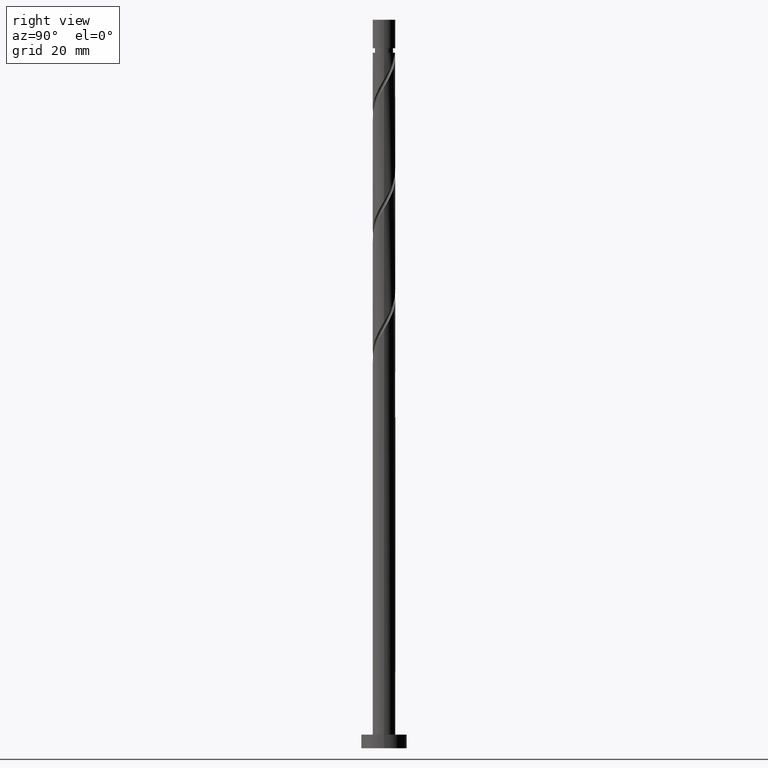
[diagram: clean part render]
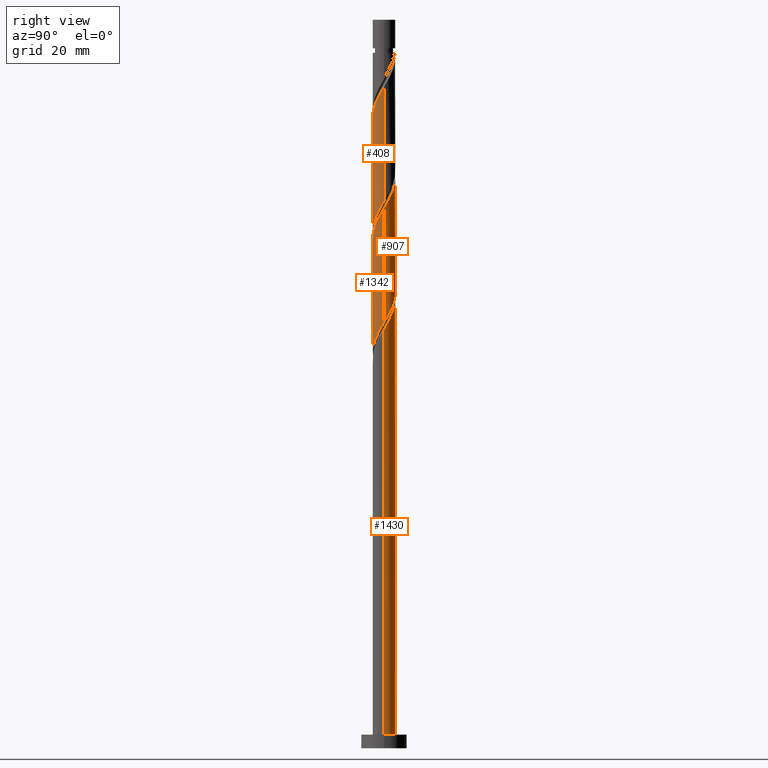
[diagram: same view with one multi-face feature highlighted, each face labeled with its STEP entity id]
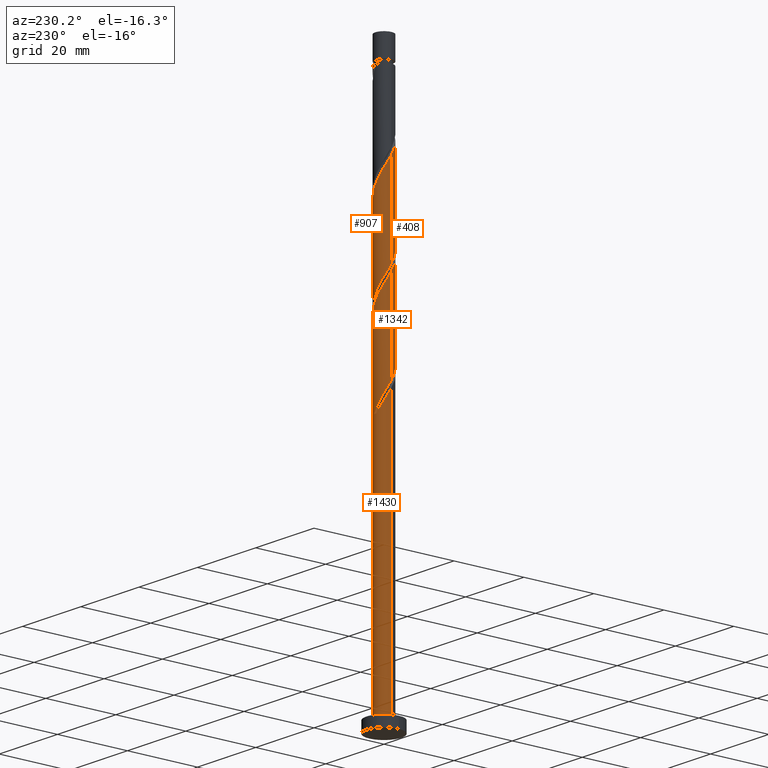
[diagram: same view with one multi-face feature highlighted, each face labeled with its STEP entity id]
A machine part, right view. The highlighted faces form ONE feature: a constant-radius fillet chain: 4 tangent blend faces with common blend radius 2.5 mm. The faces share edges in the B-rep.
A second angle (auxiliary view) of the same feature is appended — it is thin or edge-on in the first view.
Their STEP definitions:
[1] entity #408 (Cylinder):
#28 = CARTESIAN_POINT ( 'NONE',  ( 2.500000000000007105, -0.2863223184627954332, 144.7375180645839521 ) ) ;
#57 = CARTESIAN_POINT ( 'NONE',  ( -2.021932029057393443, -1.470302985738610513, 134.5577809817045534 ) ) ;
#76 = CARTESIAN_POINT ( 'NONE',  ( -0.8497505388409954952, -2.378471201873189500, 112.1335385574621313 ) ) ;
#90 = CARTESIAN_POINT ( 'NONE',  ( -2.500000000000000000, 9.587322070941203532E-15, 106.9223869761569574 ) ) ;
#101 = CARTESIAN_POINT ( 'NONE',  ( 1.525797355502942043, -1.980389464206530725, 116.3759627998864090 ) ) ;
#114 = EDGE_CURVE ( 'NONE', #1462, #1352, #448, .T. ) ;
#124 = FACE_OUTER_BOUND ( 'NONE', #1479, .T. ) ;
#133 = CARTESIAN_POINT ( 'NONE',  ( 0.000000000000000000, 0.000000000000000000, 160.0000000000000000 ) ) ;
#140 = CYLINDRICAL_SURFACE ( 'NONE', #1482, 2.500000000000000000 ) ;
#147 = CARTESIAN_POINT ( 'NONE',  ( 2.177375558832925329, -1.228428132125369387, 143.0426294665530236 ) ) ;
#156 = VECTOR ( 'NONE', #724, 1000.000000000000000 ) ;
#166 = CARTESIAN_POINT ( 'NONE',  ( -2.500000000000003553, 5.055405397781753783E-15, 131.8901446842218661 ) ) ;
#179 = CARTESIAN_POINT ( 'NONE',  ( -1.525797355502945374, -1.980389464206532057, 135.7699021938257999 ) ) ;
#202 = CARTESIAN_POINT ( 'NONE',  ( -1.485422444420509747, -2.042724014156697798, 110.9214173453409131 ) ) ;
#209 = CARTESIAN_POINT ( 'NONE',  ( 0.9060516544719198206, -2.330036566114079832, 115.1638415877651767 ) ) ;
#256 = DIRECTION ( 'NONE',  ( -1.000000000000000000, 0.000000000000000000, 0.000000000000000000 ) ) ;
#271 = CARTESIAN_POINT ( 'NONE',  ( 1.485422444420512189, -2.042724014156701795, 141.2244476483712674 ) ) ;
#290 = CARTESIAN_POINT ( 'NONE',  ( -1.241060336893711646, -2.199766004962788291, 136.3759627998864232 ) ) ;
#305 = ORIENTED_EDGE ( 'NONE', *, *, #114, .F. ) ;
#313 = EDGE_CURVE ( 'NONE', #811, #1352, #1259, .T. ) ;
#346 = CARTESIAN_POINT ( 'NONE',  ( -1.167586491630751899, -2.210597608014944093, 111.5274779514015222 ) ) ;
#352 = CARTESIAN_POINT ( 'NONE',  ( -2.435264748179750693, -0.5652305779706341404, 107.8911143150378962 ) ) ;
#397 = CARTESIAN_POINT ( 'NONE',  ( 1.167586491630753454, -2.210597608014948090, 140.6183870423106441 ) ) ;
#399 = VECTOR ( 'NONE', #1382, 1000.000000000000000 ) ;
#408 = ADVANCED_FACE ( 'NONE', ( #124 ), #140, .T. ) ;
#417 = CARTESIAN_POINT ( 'NONE',  ( 2.435264748179753802, -0.5652305779706356947, 144.2547506786742417 ) ) ;
#448 =( BOUNDED_CURVE ( )  B_SPLINE_CURVE ( 2, ( #732, #1365, #996, #1513, #1001, #478, #1629, #491, #101, #1622, #209, #1387, #1356, #856, #1495, #76, #346, #202, #984, #863, #484, #738, #352, #1247, #90 ),
 .UNSPECIFIED., .F., .T. ) 
 B_SPLINE_CURVE_WITH_KNOTS ( ( 3, 2, 2, 2, 2, 2, 2, 2, 2, 2, 2, 2, 3 ),
 ( 0.5545252162417512176, 0.5568181818181817677, 0.5681818181818182323, 0.5795454545454545858, 0.5909090909090909394, 0.6022727272727272929, 0.6136363636363636465, 0.6250000000000000000, 0.6363636363636363535, 0.6477272727272727071, 0.6590909090909090606, 0.6704545454545454142, 0.6795252162417515507 ),
 .UNSPECIFIED. ) 
 CURVE ( )  GEOMETRIC_REPRESENTATION_ITEM ( )  RATIONAL_B_SPLINE_CURVE ( ( 0.9061101570135599026, 0.9072237824201421219, 0.9090909090909196077, 0.8998376744372220681, 0.9090909090909196077, 0.8998376744372220681, 0.9090909090909196077, 0.8998376744372220681, 0.9090909090909196077, 0.8998376744372220681, 0.9090909090909196077, 0.8998376744372220681, 0.9090909090909196077, 0.8998376744372220681, 0.9090909090909196077, 0.8998376744372220681, 0.9090909090909196077, 0.8998376744372220681, 0.9090909090909196077, 0.8998376744372220681, 0.9090909090909196077, 0.8998376744372220681, 0.9090909090909196077, 0.9017048011079993319, 0.9061101570135603467 ) ) 
 REPRESENTATION_ITEM ( '' )  );
#478 = CARTESIAN_POINT ( 'NONE',  ( 2.233329684002602900, -1.179593048026942315, 118.1941446180682220 ) ) ;
#484 = CARTESIAN_POINT ( 'NONE',  ( -2.177375558832922664, -1.228428132125366723, 109.1032355271591143 ) ) ;
#491 = CARTESIAN_POINT ( 'NONE',  ( 1.810534374112177547, -1.761012923450274714, 116.9820234059470039 ) ) ;
#536 = CARTESIAN_POINT ( 'NONE',  ( -2.354261794510399408, -0.8411013035946942606, 133.3456597695833352 ) ) ;
#575 = CARTESIAN_POINT ( 'NONE',  ( -2.500000000000003553, 5.055405397781753783E-15, 131.8901446842218661 ) ) ;
#623 = CARTESIAN_POINT ( 'NONE',  ( 2.500000000000000444, -3.155889168437744836E-15, 120.2557203094903002 ) ) ;
#631 = DIRECTION ( 'NONE',  ( -0.000000000000000000, -0.000000000000000000, -1.000000000000000000 ) ) ;
#686 = EDGE_CURVE ( 'NONE', #811, #1546, #1012, .T. ) ;
#695 = CARTESIAN_POINT ( 'NONE',  ( -0.9060516544719224852, -2.330036566114084273, 136.9820234059470749 ) ) ;
#724 = DIRECTION ( 'NONE',  ( -0.000000000000000000, -0.000000000000000000, -1.000000000000000000 ) ) ;
#732 = CARTESIAN_POINT ( 'NONE',  ( 2.500000000000000444, -3.155889168437744836E-15, 120.2557203094903002 ) ) ;
#738 = CARTESIAN_POINT ( 'NONE',  ( -2.353996859965338917, -0.9153687888900170488, 108.4971749210985053 ) ) ;
#739 = LINE ( 'NONE', #1651, #399 ) ;
#811 = VERTEX_POINT ( 'NONE', #575 ) ;
#849 = CARTESIAN_POINT ( 'NONE',  ( -2.500000000000000000, 0.000000000000000000, 160.0000000000000000 ) ) ;
#856 = CARTESIAN_POINT ( 'NONE',  ( -0.1452368982656266350, -2.521528798126810411, 113.3456597695833636 ) ) ;
#863 = CARTESIAN_POINT ( 'NONE',  ( -2.000754257700505967, -1.541487475360715065, 109.7092961332197234 ) ) ;
#916 = CARTESIAN_POINT ( 'NONE',  ( -2.233329684002606896, -1.179593048026944091, 133.9517203756439869 ) ) ;
#926 = CARTESIAN_POINT ( 'NONE',  ( 2.500000000000003997, 1.839688946530046523E-15, 145.2234780175552373 ) ) ;
#949 = ORIENTED_EDGE ( 'NONE', *, *, #313, .T. ) ;
#984 = CARTESIAN_POINT ( 'NONE',  ( -1.743088351060508412, -1.792105744758706987, 110.3153567392803467 ) ) ;
#996 = CARTESIAN_POINT ( 'NONE',  ( 2.495863270706175197, -0.1437585960555969600, 120.0123264362500066 ) ) ;
#1001 = CARTESIAN_POINT ( 'NONE',  ( 2.354261794510395411, -0.8411013035946938166, 118.8002052241288027 ) ) ;
#1012 =( BOUNDED_CURVE ( )  B_SPLINE_CURVE ( 2, ( #166, #1553, #1457, #1068, #536, #916, #57, #1330, #179, #290, #695, #1079, #1566, #1575, #1050, #1598, #397, #271, #1340, #1309, #147, #1175, #417, #28, #926 ),
 .UNSPECIFIED., .F., .T. ) 
 B_SPLINE_CURVE_WITH_KNOTS ( ( 3, 2, 2, 2, 2, 2, 2, 2, 2, 2, 2, 2, 3 ),
 ( 0.5545252162417513286, 0.5568181818181818787, 0.5681818181818181213, 0.5795454545454545858, 0.5909090909090908283, 0.6022727272727272929, 0.6136363636363636465, 0.6250000000000000000, 0.6363636363636363535, 0.6477272727272727071, 0.6590909090909091717, 0.6704545454545454142, 0.6795252162417517727 ),
 .UNSPECIFIED. ) 
 CURVE ( )  GEOMETRIC_REPRESENTATION_ITEM ( )  RATIONAL_B_SPLINE_CURVE ( ( 0.9061101570135664529, 0.9072237824201486722, 0.9090909090909261581, 0.8998376744372282854, 0.9090909090909261581, 0.8998376744372282854, 0.9090909090909261581, 0.8998376744372282854, 0.9090909090909261581, 0.8998376744372282854, 0.9090909090909261581, 0.8998376744372282854, 0.9090909090909261581, 0.8998376744372282854, 0.9090909090909261581, 0.8998376744372282854, 0.9090909090909261581, 0.8998376744372282854, 0.9090909090909261581, 0.8998376744372282854, 0.9090909090909261581, 0.8998376744372282854, 0.9090909090909261581, 0.9017048011080055492, 0.9061101570135668970 ) ) 
 REPRESENTATION_ITEM ( '' )  );
#1050 = CARTESIAN_POINT ( 'NONE',  ( 0.4974937185533107042, -2.450000000000004174, 139.4062658301894260 ) ) ;
#1053 = ORIENTED_EDGE ( 'NONE', *, *, #686, .F. ) ;
#1068 = CARTESIAN_POINT ( 'NONE',  ( -2.475193905018193252, -0.5026095591624447634, 132.7395991635227972 ) ) ;
#1079 = CARTESIAN_POINT ( 'NONE',  ( -0.5710429720501328799, -2.460307127265380256, 137.5880840120076414 ) ) ;
#1175 = CARTESIAN_POINT ( 'NONE',  ( 2.353996859965343802, -0.9153687888900189362, 143.6486900726136753 ) ) ;
#1247 = CARTESIAN_POINT ( 'NONE',  ( -2.500000000000001776, -0.2863223184627987083, 107.4083469291282569 ) ) ;
#1259 = LINE ( 'NONE', #849, #156 ) ;
#1309 = CARTESIAN_POINT ( 'NONE',  ( 2.000754257700509076, -1.541487475360719284, 142.4365688604924856 ) ) ;
#1330 = CARTESIAN_POINT ( 'NONE',  ( -1.810534374112179989, -1.761012923450278045, 135.1638415877652051 ) ) ;
#1340 = CARTESIAN_POINT ( 'NONE',  ( 1.743088351060510188, -1.792105744758709873, 141.8305082544318623 ) ) ;
#1352 = VERTEX_POINT ( 'NONE', #1623 ) ;
#1356 = CARTESIAN_POINT ( 'NONE',  ( 0.2129030368922521788, -2.490917962696093113, 113.9517203756439869 ) ) ;
#1365 = CARTESIAN_POINT ( 'NONE',  ( 2.500000000000000444, -0.07193881630955473172, 120.1336223047720893 ) ) ;
#1382 = DIRECTION ( 'NONE',  ( -0.000000000000000000, -0.000000000000000000, -1.000000000000000000 ) ) ;
#1387 = CARTESIAN_POINT ( 'NONE',  ( 0.5710429720501321027, -2.460307127265375371, 114.5577809817045534 ) ) ;
#1408 = CARTESIAN_POINT ( 'NONE',  ( 2.500000000000003997, 1.839688946530046523E-15, 145.2234780175552373 ) ) ;
#1457 = CARTESIAN_POINT ( 'NONE',  ( -2.495863270706177861, -0.1437585960555961828, 132.1335385574621455 ) ) ;
#1462 = VERTEX_POINT ( 'NONE', #623 ) ;
#1474 = ORIENTED_EDGE ( 'NONE', *, *, #1519, .F. ) ;
#1479 = EDGE_LOOP ( 'NONE', ( #1474, #1053, #949, #305 ) ) ;
#1482 = AXIS2_PLACEMENT_3D ( 'NONE', #133, #631, #256 ) ;
#1495 = CARTESIAN_POINT ( 'NONE',  ( -0.4974937185533109263, -2.449999999999999289, 112.7395991635227404 ) ) ;
#1513 = CARTESIAN_POINT ( 'NONE',  ( 2.475193905018187035, -0.5026095591624447634, 119.4062658301894118 ) ) ;
#1519 = EDGE_CURVE ( 'NONE', #1546, #1462, #739, .T. ) ;
#1546 = VERTEX_POINT ( 'NONE', #1408 ) ;
#1553 = CARTESIAN_POINT ( 'NONE',  ( -2.500000000000003109, -0.07193881630955441253, 132.0122426889400629 ) ) ;
#1566 = CARTESIAN_POINT ( 'NONE',  ( -0.2129030368922535665, -2.490917962696097554, 138.1941446180681794 ) ) ;
#1575 = CARTESIAN_POINT ( 'NONE',  ( 0.1452368982656257745, -2.521528798126813964, 138.8002052241288311 ) ) ;
#1598 = CARTESIAN_POINT ( 'NONE',  ( 0.8497505388409959393, -2.378471201873194385, 140.0123264362500493 ) ) ;
#1622 = CARTESIAN_POINT ( 'NONE',  ( 1.241060336893708538, -2.199766004962784738, 115.7699021938257715 ) ) ;
#1623 = CARTESIAN_POINT ( 'NONE',  ( -2.500000000000000000, 9.587322070941203532E-15, 106.9223869761569574 ) ) ;
#1629 = CARTESIAN_POINT ( 'NONE',  ( 2.021932029057389890, -1.470302985738608958, 117.5880840120076130 ) ) ;
#1651 = CARTESIAN_POINT ( 'NONE',  ( 2.500000000000000000, 3.061616997868383141E-16, 160.0000000000000000 ) ) ;
[2] entity #907 (Cylinder):
#5 = DIRECTION ( 'NONE',  ( -1.000000000000000000, 0.000000000000000000, 0.000000000000000000 ) ) ;
#8 = ORIENTED_EDGE ( 'NONE', *, *, #839, .F. ) ;
#70 = CARTESIAN_POINT ( 'NONE',  ( -2.495863270706175197, 0.1437585960555966269, 106.6789931029167064 ) ) ;
#91 = CARTESIAN_POINT ( 'NONE',  ( -2.354261794510395411, 0.8411013035946935945, 105.4668718907954883 ) ) ;
#156 = VECTOR ( 'NONE', #724, 1000.000000000000000 ) ;
#198 = CARTESIAN_POINT ( 'NONE',  ( -2.500000000000003553, 5.055405397781753783E-15, 131.8901446842218661 ) ) ;
#203 = CARTESIAN_POINT ( 'NONE',  ( -0.9060516544719198206, 2.330036566114079832, 101.8305082544318338 ) ) ;
#210 = CARTESIAN_POINT ( 'NONE',  ( -1.525797355502942487, 1.980389464206529837, 103.0426294665530520 ) ) ;
#213 = CARTESIAN_POINT ( 'NONE',  ( 2.495863270706177861, 0.1437585960555959053, 118.8002052241288169 ) ) ;
#220 = CARTESIAN_POINT ( 'NONE',  ( -1.485422444420511967, 2.042724014156701795, 127.8911143150379672 ) ) ;
#225 = CARTESIAN_POINT ( 'NONE',  ( -0.1452368982656254692, 2.521528798126813964, 125.4668718907955309 ) ) ;
#278 = CARTESIAN_POINT ( 'NONE',  ( -2.500000000000000000, 9.587322070941203532E-15, 106.9223869761569574 ) ) ;
#313 = EDGE_CURVE ( 'NONE', #811, #1352, #1259, .T. ) ;
#330 = CARTESIAN_POINT ( 'NONE',  ( -1.743088351060510188, 1.792105744758709873, 128.4971749210985195 ) ) ;
#342 = CARTESIAN_POINT ( 'NONE',  ( 2.000754257700505523, 1.541487475360715953, 96.37596279988638059 ) ) ;
#350 = CARTESIAN_POINT ( 'NONE',  ( 0.9060516544719215970, 2.330036566114083829, 123.6486900726136753 ) ) ;
#363 = CARTESIAN_POINT ( 'NONE',  ( 0.000000000000000000, 0.000000000000000000, 160.0000000000000000 ) ) ;
#404 = CARTESIAN_POINT ( 'NONE',  ( 2.500000000000000000, 3.061616997868383141E-16, 160.0000000000000000 ) ) ;
#466 = CARTESIAN_POINT ( 'NONE',  ( 1.167586491630752343, 2.210597608014944093, 98.19414461806822203 ) ) ;
#468 = CARTESIAN_POINT ( 'NONE',  ( 0.2129030368922538718, 2.490917962696097554, 124.8608112847348934 ) ) ;
#473 = CARTESIAN_POINT ( 'NONE',  ( -2.021932029057389446, 1.470302985738609181, 104.2547506786742559 ) ) ;
#475 = CARTESIAN_POINT ( 'NONE',  ( -0.4974937185533103712, 2.450000000000004174, 126.0729324968560832 ) ) ;
#479 = CARTESIAN_POINT ( 'NONE',  ( -2.475193905018187035, 0.5026095591624444303, 106.0729324968560974 ) ) ;
#482 = CARTESIAN_POINT ( 'NONE',  ( -2.435264748179753802, 0.5652305779706361388, 130.9214173453409273 ) ) ;
#563 = LINE ( 'NONE', #404, #731 ) ;
#575 = CARTESIAN_POINT ( 'NONE',  ( -2.500000000000003553, 5.055405397781753783E-15, 131.8901446842218661 ) ) ;
#587 = CARTESIAN_POINT ( 'NONE',  ( -0.2129030368922528726, 2.490917962696093113, 100.6183870423106299 ) ) ;
#596 = CARTESIAN_POINT ( 'NONE',  ( 2.435264748179749805, 0.5652305779706334743, 94.55778098170459600 ) ) ;
#605 = CARTESIAN_POINT ( 'NONE',  ( 2.500000000000003997, 1.839688946530046523E-15, 118.5568113508885517 ) ) ;
#689 = ORIENTED_EDGE ( 'NONE', *, *, #313, .F. ) ;
#718 = CARTESIAN_POINT ( 'NONE',  ( -0.5710429720501314366, 2.460307127265375371, 101.2244476483711964 ) ) ;
#724 = DIRECTION ( 'NONE',  ( -0.000000000000000000, -0.000000000000000000, -1.000000000000000000 ) ) ;
#728 = CARTESIAN_POINT ( 'NONE',  ( -0.8497505388409964944, 2.378471201873193941, 126.6789931029167064 ) ) ;
#731 = VECTOR ( 'NONE', #935, 1000.000000000000000 ) ;
#735 = CARTESIAN_POINT ( 'NONE',  ( -2.000754257700509076, 1.541487475360719062, 129.1032355271591712 ) ) ;
#770 = FACE_OUTER_BOUND ( 'NONE', #1467, .T. ) ;
#796 = CARTESIAN_POINT ( 'NONE',  ( -2.500000000000000444, 0.07193881630956475148, 106.8002889714387607 ) ) ;
#811 = VERTEX_POINT ( 'NONE', #575 ) ;
#833 = CARTESIAN_POINT ( 'NONE',  ( 0.5710429720501333239, 2.460307127265380256, 124.2547506786742986 ) ) ;
#839 = EDGE_CURVE ( 'NONE', #1582, #811, #1070, .T. ) ;
#842 = CARTESIAN_POINT ( 'NONE',  ( -2.233329684002602900, 1.179593048026942315, 104.8608112847348792 ) ) ;
#844 = CARTESIAN_POINT ( 'NONE',  ( -2.177375558832925773, 1.228428132125368943, 129.7092961332197376 ) ) ;
#849 = CARTESIAN_POINT ( 'NONE',  ( -2.500000000000000000, 0.000000000000000000, 160.0000000000000000 ) ) ;
#857 = CARTESIAN_POINT ( 'NONE',  ( 0.1452368982656260243, 2.521528798126809967, 100.0123264362500066 ) ) ;
#859 = CARTESIAN_POINT ( 'NONE',  ( 2.354261794510399408, 0.8411013035946938166, 120.0123264362500350 ) ) ;
#887 = CYLINDRICAL_SURFACE ( 'NONE', #1380, 2.500000000000000000 ) ;
#904 = DIRECTION ( 'NONE',  ( -0.000000000000000000, -0.000000000000000000, -1.000000000000000000 ) ) ;
#907 = ADVANCED_FACE ( 'NONE', ( #770 ), #887, .T. ) ;
#935 = DIRECTION ( 'NONE',  ( -0.000000000000000000, -0.000000000000000000, -1.000000000000000000 ) ) ;
#972 = CARTESIAN_POINT ( 'NONE',  ( 2.475193905018193252, 0.5026095591624444303, 119.4062658301894686 ) ) ;
#979 = CARTESIAN_POINT ( 'NONE',  ( 2.353996859965339361, 0.9153687888900159386, 95.16384158776513402 ) ) ;
#991 = CARTESIAN_POINT ( 'NONE',  ( 2.177375558832922664, 1.228428132125367167, 95.76990219382578573 ) ) ;
#1070 =( BOUNDED_CURVE ( )  B_SPLINE_CURVE ( 2, ( #605, #1475, #213, #972, #859, #1639, #1091, #1113, #1376, #1384, #350, #833, #468, #225, #475, #728, #1350, #220, #330, #735, #844, #1608, #482, #1361, #198 ),
 .UNSPECIFIED., .F., .T. ) 
 B_SPLINE_CURVE_WITH_KNOTS ( ( 3, 2, 2, 2, 2, 2, 2, 2, 2, 2, 2, 2, 3 ),
 ( 0.4295252162417516062, 0.4318181818181817677, 0.4431818181818182323, 0.4545454545454545858, 0.4659090909090909394, 0.4772727272727272929, 0.4886363636363636465, 0.5000000000000000000, 0.5113636363636363535, 0.5227272727272727071, 0.5340909090909091717, 0.5454545454545454142, 0.5545252162417513286 ),
 .UNSPECIFIED. ) 
 CURVE ( )  GEOMETRIC_REPRESENTATION_ITEM ( )  RATIONAL_B_SPLINE_CURVE ( ( 0.9061101570135667860, 0.9072237824201488943, 0.9090909090909261581, 0.8998376744372282854, 0.9090909090909261581, 0.8998376744372282854, 0.9090909090909261581, 0.8998376744372282854, 0.9090909090909261581, 0.8998376744372282854, 0.9090909090909261581, 0.8998376744372282854, 0.9090909090909261581, 0.8998376744372282854, 0.9090909090909261581, 0.8998376744372282854, 0.9090909090909261581, 0.8998376744372282854, 0.9090909090909261581, 0.8998376744372282854, 0.9090909090909261581, 0.8998376744372282854, 0.9090909090909261581, 0.9017048011080057712, 0.9061101570135664529 ) ) 
 REPRESENTATION_ITEM ( '' )  );
#1091 = CARTESIAN_POINT ( 'NONE',  ( 2.021932029057393887, 1.470302985738609847, 121.2244476483712532 ) ) ;
#1113 = CARTESIAN_POINT ( 'NONE',  ( 1.810534374112180656, 1.761012923450276935, 121.8305082544318338 ) ) ;
#1138 = EDGE_CURVE ( 'NONE', #1582, #1565, #563, .T. ) ;
#1214 = CARTESIAN_POINT ( 'NONE',  ( 0.8497505388409958282, 2.378471201873189500, 98.80020522412880268 ) ) ;
#1223 = CARTESIAN_POINT ( 'NONE',  ( 1.485422444420509969, 2.042724014156697798, 97.58808401200758453 ) ) ;
#1239 = CARTESIAN_POINT ( 'NONE',  ( 1.743088351060507524, 1.792105744758707209, 96.98202340594698967 ) ) ;
#1248 = CARTESIAN_POINT ( 'NONE',  ( -1.810534374112176215, 1.761012923450275158, 103.6486900726136611 ) ) ;
#1259 = LINE ( 'NONE', #849, #156 ) ;
#1262 = EDGE_CURVE ( 'NONE', #1352, #1565, #1616, .T. ) ;
#1337 = ORIENTED_EDGE ( 'NONE', *, *, #1262, .F. ) ;
#1350 = CARTESIAN_POINT ( 'NONE',  ( -1.167586491630753898, 2.210597608014947646, 127.2850537089773013 ) ) ;
#1352 = VERTEX_POINT ( 'NONE', #1623 ) ;
#1361 = CARTESIAN_POINT ( 'NONE',  ( -2.500000000000003997, 0.2863223184628094775, 131.4041847312505809 ) ) ;
#1373 = CARTESIAN_POINT ( 'NONE',  ( 0.4974937185533113704, 2.449999999999999289, 99.40626583018944018 ) ) ;
#1376 = CARTESIAN_POINT ( 'NONE',  ( 1.525797355502944930, 1.980389464206532946, 122.4365688604924571 ) ) ;
#1380 = AXIS2_PLACEMENT_3D ( 'NONE', #363, #904, #5 ) ;
#1384 = CARTESIAN_POINT ( 'NONE',  ( 1.241060336893710536, 2.199766004962788735, 123.0426294665530946 ) ) ;
#1467 = EDGE_LOOP ( 'NONE', ( #8, #1597, #1337, #689 ) ) ;
#1475 = CARTESIAN_POINT ( 'NONE',  ( 2.500000000000002665, 0.07193881630956573681, 118.6789093556067627 ) ) ;
#1490 = CARTESIAN_POINT ( 'NONE',  ( 2.500000000000000444, -3.155889168437744836E-15, 93.58905364282367145 ) ) ;
#1496 = CARTESIAN_POINT ( 'NONE',  ( -1.241060336893708760, 2.199766004962784738, 102.4365688604924856 ) ) ;
#1565 = VERTEX_POINT ( 'NONE', #1657 ) ;
#1582 = VERTEX_POINT ( 'NONE', #1643 ) ;
#1597 = ORIENTED_EDGE ( 'NONE', *, *, #1138, .T. ) ;
#1608 = CARTESIAN_POINT ( 'NONE',  ( -2.353996859965342914, 0.9153687888900196024, 130.3153567392803609 ) ) ;
#1616 =( BOUNDED_CURVE ( )  B_SPLINE_CURVE ( 2, ( #278, #796, #70, #479, #91, #842, #473, #1248, #210, #1496, #203, #718, #587, #857, #1373, #1214, #466, #1223, #1239, #342, #991, #979, #596, #1636, #1490 ),
 .UNSPECIFIED., .F., .T. ) 
 B_SPLINE_CURVE_WITH_KNOTS ( ( 3, 2, 2, 2, 2, 2, 2, 2, 2, 2, 2, 2, 3 ),
 ( 0.6795252162417515507, 0.6818181818181817677, 0.6931818181818182323, 0.7045454545454545858, 0.7159090909090909394, 0.7272727272727272929, 0.7386363636363636465, 0.7500000000000000000, 0.7613636363636363535, 0.7727272727272727071, 0.7840909090909090606, 0.7954545454545454142, 0.8045252162417513286 ),
 .UNSPECIFIED. ) 
 CURVE ( )  GEOMETRIC_REPRESENTATION_ITEM ( )  RATIONAL_B_SPLINE_CURVE ( ( 0.9061101570135603467, 0.9072237824201423440, 0.9090909090909196077, 0.8998376744372220681, 0.9090909090909196077, 0.8998376744372220681, 0.9090909090909196077, 0.8998376744372220681, 0.9090909090909196077, 0.8998376744372220681, 0.9090909090909196077, 0.8998376744372220681, 0.9090909090909196077, 0.8998376744372220681, 0.9090909090909196077, 0.8998376744372220681, 0.9090909090909196077, 0.8998376744372220681, 0.9090909090909196077, 0.8998376744372220681, 0.9090909090909196077, 0.8998376744372220681, 0.9090909090909196077, 0.9017048011079995540, 0.9061101570135600136 ) ) 
 REPRESENTATION_ITEM ( '' )  );
#1623 = CARTESIAN_POINT ( 'NONE',  ( -2.500000000000000000, 9.587322070941203532E-15, 106.9223869761569574 ) ) ;
#1636 = CARTESIAN_POINT ( 'NONE',  ( 2.500000000000000444, 0.2863223184628046480, 94.07501359579498512 ) ) ;
#1639 = CARTESIAN_POINT ( 'NONE',  ( 2.233329684002607785, 1.179593048026943647, 120.6183870423106725 ) ) ;
#1643 = CARTESIAN_POINT ( 'NONE',  ( 2.500000000000003997, 1.839688946530046523E-15, 118.5568113508885517 ) ) ;
#1657 = CARTESIAN_POINT ( 'NONE',  ( 2.500000000000000444, -3.155889168437744836E-15, 93.58905364282367145 ) ) ;
[3] entity #1342 (Cylinder):
#35 = ORIENTED_EDGE ( 'NONE', *, *, #88, .F. ) ;
#52 = CARTESIAN_POINT ( 'NONE',  ( -1.485422444420509747, -2.042724014156697798, 84.25475067867425594 ) ) ;
#69 = CARTESIAN_POINT ( 'NONE',  ( 2.354261794510395411, -0.8411013035946938166, 92.13353855746213128 ) ) ;
#79 = CARTESIAN_POINT ( 'NONE',  ( -1.810534374112179989, -1.761012923450278045, 108.4971749210985621 ) ) ;
#86 = CARTESIAN_POINT ( 'NONE',  ( -2.354261794510399408, -0.8411013035946942606, 106.6789931029167207 ) ) ;
#88 = EDGE_CURVE ( 'NONE', #1565, #1489, #1568, .T. ) ;
#99 = CARTESIAN_POINT ( 'NONE',  ( 2.500000000000003997, 1.839688946530046523E-15, 118.5568113508885517 ) ) ;
#108 = ORIENTED_EDGE ( 'NONE', *, *, #1090, .T. ) ;
#117 = CARTESIAN_POINT ( 'NONE',  ( -2.500000000000003553, 5.055405397781753783E-15, 105.2234780175551805 ) ) ;
#152 = LINE ( 'NONE', #944, #1180 ) ;
#163 = CARTESIAN_POINT ( 'NONE',  ( -0.1452368982656266350, -2.521528798126810411, 86.67899310291667803 ) ) ;
#175 = CARTESIAN_POINT ( 'NONE',  ( -1.743088351060508412, -1.792105744758706987, 83.64869007261367528 ) ) ;
#194 = CARTESIAN_POINT ( 'NONE',  ( 0.2129030368922521788, -2.490917962696093113, 87.28505370897730131 ) ) ;
#251 = CARTESIAN_POINT ( 'NONE',  ( 0.4974937185533107042, -2.450000000000004174, 112.7395991635227546 ) ) ;
#299 = CARTESIAN_POINT ( 'NONE',  ( 2.500000000000000444, -0.07193881630955824280, 93.46695563810544627 ) ) ;
#309 = CARTESIAN_POINT ( 'NONE',  ( 0.5710429720501321027, -2.460307127265375371, 87.89111431503789618 ) ) ;
#316 = CARTESIAN_POINT ( 'NONE',  ( 1.810534374112177547, -1.761012923450274714, 90.31535673928033248 ) ) ;
#326 = CARTESIAN_POINT ( 'NONE',  ( -2.353996859965338917, -0.9153687888900170488, 81.83050825443186227 ) ) ;
#338 = CARTESIAN_POINT ( 'NONE',  ( -0.2129030368922535665, -2.490917962696097554, 111.5274779514015506 ) ) ;
#357 = VERTEX_POINT ( 'NONE', #117 ) ;
#380 = CARTESIAN_POINT ( 'NONE',  ( 2.000754257700509076, -1.541487475360719284, 115.7699021938258142 ) ) ;
#404 = CARTESIAN_POINT ( 'NONE',  ( 2.500000000000000000, 3.061616997868383141E-16, 160.0000000000000000 ) ) ;
#444 = CARTESIAN_POINT ( 'NONE',  ( 2.021932029057389890, -1.470302985738608958, 90.92141734534092734 ) ) ;
#454 = CARTESIAN_POINT ( 'NONE',  ( 1.241060336893708538, -2.199766004962784738, 89.10323552715911433 ) ) ;
#457 = CARTESIAN_POINT ( 'NONE',  ( -2.021932029057393443, -1.470302985738610513, 107.8911143150379104 ) ) ;
#488 = CARTESIAN_POINT ( 'NONE',  ( 2.500000000000007105, -0.2863223184627978757, 118.0708513979172665 ) ) ;
#494 = CARTESIAN_POINT ( 'NONE',  ( 2.435264748179753802, -0.5652305779706356947, 117.5880840120075987 ) ) ;
#508 = CARTESIAN_POINT ( 'NONE',  ( 1.743088351060510188, -1.792105744758709873, 115.1638415877651909 ) ) ;
#563 = LINE ( 'NONE', #404, #731 ) ;
#573 = DIRECTION ( 'NONE',  ( -0.000000000000000000, -0.000000000000000000, -1.000000000000000000 ) ) ;
#579 = CARTESIAN_POINT ( 'NONE',  ( -2.435264748179750693, -0.5652305779706341404, 81.22444764837122477 ) ) ;
#582 = CARTESIAN_POINT ( 'NONE',  ( -2.500000000000003553, 5.055405397781753783E-15, 105.2234780175551663 ) ) ;
#681 = CARTESIAN_POINT ( 'NONE',  ( -1.167586491630751899, -2.210597608014944093, 84.86081128473487922 ) ) ;
#697 = EDGE_LOOP ( 'NONE', ( #1008, #881, #108, #35 ) ) ;
#701 = DIRECTION ( 'NONE',  ( -1.000000000000000000, 0.000000000000000000, 0.000000000000000000 ) ) ;
#709 = CARTESIAN_POINT ( 'NONE',  ( -2.000754257700505967, -1.541487475360715065, 83.04262946655303779 ) ) ;
#731 = VECTOR ( 'NONE', #935, 1000.000000000000000 ) ;
#733 = CARTESIAN_POINT ( 'NONE',  ( 0.000000000000000000, 0.000000000000000000, 160.0000000000000000 ) ) ;
#754 = CARTESIAN_POINT ( 'NONE',  ( 2.353996859965343802, -0.9153687888900189362, 116.9820234059470323 ) ) ;
#803 = CARTESIAN_POINT ( 'NONE',  ( 2.475193905018187035, -0.5026095591624447634, 92.73959916352275457 ) ) ;
#814 = CARTESIAN_POINT ( 'NONE',  ( -0.4974937185533109263, -2.449999999999999289, 86.07293249685609737 ) ) ;
#830 = CARTESIAN_POINT ( 'NONE',  ( 1.525797355502942043, -1.980389464206530725, 89.70929613321973761 ) ) ;
#840 = CARTESIAN_POINT ( 'NONE',  ( -2.500000000000000444, 2.624922033463622086E-15, 80.25572030949031443 ) ) ;
#853 = CARTESIAN_POINT ( 'NONE',  ( -1.525797355502945374, -1.980389464206532057, 109.1032355271591285 ) ) ;
#869 = CARTESIAN_POINT ( 'NONE',  ( -2.500000000000000444, 2.624922033463622086E-15, 80.25572030949031443 ) ) ;
#881 = ORIENTED_EDGE ( 'NONE', *, *, #885, .F. ) ;
#885 = EDGE_CURVE ( 'NONE', #357, #1582, #1187, .T. ) ;
#934 = CARTESIAN_POINT ( 'NONE',  ( 2.233329684002602900, -1.179593048026942315, 91.52747795140152220 ) ) ;
#935 = DIRECTION ( 'NONE',  ( -0.000000000000000000, -0.000000000000000000, -1.000000000000000000 ) ) ;
#944 = CARTESIAN_POINT ( 'NONE',  ( -2.500000000000000000, 0.000000000000000000, 160.0000000000000000 ) ) ;
#948 = AXIS2_PLACEMENT_3D ( 'NONE', #733, #573, #701 ) ;
#981 = CARTESIAN_POINT ( 'NONE',  ( -0.5710429720501328799, -2.460307127265380256, 110.9214173453409984 ) ) ;
#1004 = CARTESIAN_POINT ( 'NONE',  ( 1.485422444420512189, -2.042724014156701795, 114.5577809817045960 ) ) ;
#1008 = ORIENTED_EDGE ( 'NONE', *, *, #1138, .F. ) ;
#1030 = CARTESIAN_POINT ( 'NONE',  ( 0.1452368982656257745, -2.521528798126813964, 112.1335385574621597 ) ) ;
#1090 = EDGE_CURVE ( 'NONE', #357, #1489, #152, .T. ) ;
#1098 = CARTESIAN_POINT ( 'NONE',  ( -2.495863270706177861, -0.1437585960555961828, 105.4668718907954883 ) ) ;
#1105 = CARTESIAN_POINT ( 'NONE',  ( -1.241060336893711646, -2.199766004962788291, 109.7092961332197660 ) ) ;
#1138 = EDGE_CURVE ( 'NONE', #1582, #1565, #563, .T. ) ;
#1151 = CARTESIAN_POINT ( 'NONE',  ( 1.167586491630753454, -2.210597608014948090, 113.9517203756439727 ) ) ;
#1180 = VECTOR ( 'NONE', #1203, 1000.000000000000000 ) ;
#1187 =( BOUNDED_CURVE ( )  B_SPLINE_CURVE ( 2, ( #582, #1234, #1098, #1241, #86, #1617, #457, #79, #853, #1105, #1626, #981, #338, #1030, #251, #1390, #1151, #1004, #508, #380, #1524, #754, #494, #488, #99 ),
 .UNSPECIFIED., .F., .T. ) 
 B_SPLINE_CURVE_WITH_KNOTS ( ( 3, 2, 2, 2, 2, 2, 2, 2, 2, 2, 2, 2, 3 ),
 ( 0.3045252162417511621, 0.3068181818181817677, 0.3181818181818182323, 0.3295454545454545858, 0.3409090909090909394, 0.3522727272727272929, 0.3636363636363636465, 0.3750000000000000000, 0.3863636363636363535, 0.3977272727272727071, 0.4090909090909090606, 0.4204545454545454142, 0.4295252162417516062 ),
 .UNSPECIFIED. ) 
 CURVE ( )  GEOMETRIC_REPRESENTATION_ITEM ( )  RATIONAL_B_SPLINE_CURVE ( ( 0.9061101570135663419, 0.9072237824201485612, 0.9090909090909261581, 0.8998376744372282854, 0.9090909090909261581, 0.8998376744372282854, 0.9090909090909261581, 0.8998376744372282854, 0.9090909090909261581, 0.8998376744372282854, 0.9090909090909261581, 0.8998376744372282854, 0.9090909090909261581, 0.8998376744372282854, 0.9090909090909261581, 0.8998376744372282854, 0.9090909090909261581, 0.8998376744372282854, 0.9090909090909261581, 0.8998376744372282854, 0.9090909090909261581, 0.8998376744372282854, 0.9090909090909261581, 0.9017048011080055492, 0.9061101570135667860 ) ) 
 REPRESENTATION_ITEM ( '' )  );
#1202 = CARTESIAN_POINT ( 'NONE',  ( -2.177375558832922664, -1.228428132125366723, 82.43656886049247134 ) ) ;
#1203 = DIRECTION ( 'NONE',  ( -0.000000000000000000, -0.000000000000000000, -1.000000000000000000 ) ) ;
#1212 = CARTESIAN_POINT ( 'NONE',  ( 2.495863270706175197, -0.1437585960555969600, 93.34565976958334943 ) ) ;
#1234 = CARTESIAN_POINT ( 'NONE',  ( -2.500000000000004441, -0.07193881630955197004, 105.3455760222734199 ) ) ;
#1241 = CARTESIAN_POINT ( 'NONE',  ( -2.475193905018193252, -0.5026095591624447634, 106.0729324968561116 ) ) ;
#1326 = CARTESIAN_POINT ( 'NONE',  ( -0.8497505388409954952, -2.378471201873189500, 85.46687189079545988 ) ) ;
#1338 = CYLINDRICAL_SURFACE ( 'NONE', #948, 2.500000000000000000 ) ;
#1342 = ADVANCED_FACE ( 'NONE', ( #1472 ), #1338, .T. ) ;
#1345 = CARTESIAN_POINT ( 'NONE',  ( 0.9060516544719198206, -2.330036566114079832, 88.49717492109849104 ) ) ;
#1390 = CARTESIAN_POINT ( 'NONE',  ( 0.8497505388409959393, -2.378471201873194385, 113.3456597695833921 ) ) ;
#1472 = FACE_OUTER_BOUND ( 'NONE', #697, .T. ) ;
#1489 = VERTEX_POINT ( 'NONE', #869 ) ;
#1524 = CARTESIAN_POINT ( 'NONE',  ( 2.177375558832925329, -1.228428132125369387, 116.3759627998864090 ) ) ;
#1565 = VERTEX_POINT ( 'NONE', #1657 ) ;
#1568 =( BOUNDED_CURVE ( )  B_SPLINE_CURVE ( 2, ( #1604, #299, #1212, #803, #69, #934, #444, #316, #830, #454, #1345, #309, #194, #163, #814, #1326, #681, #52, #175, #709, #1202, #326, #579, #1613, #840 ),
 .UNSPECIFIED., .F., .T. ) 
 B_SPLINE_CURVE_WITH_KNOTS ( ( 3, 2, 2, 2, 2, 2, 2, 2, 2, 2, 2, 2, 3 ),
 ( 0.8045252162417513286, 0.8068181818181817677, 0.8181818181818182323, 0.8295454545454545858, 0.8409090909090909394, 0.8522727272727272929, 0.8636363636363636465, 0.8750000000000000000, 0.8863636363636363535, 0.8977272727272727071, 0.9090909090909090606, 0.9204545454545454142, 0.9295252162417513286 ),
 .UNSPECIFIED. ) 
 CURVE ( )  GEOMETRIC_REPRESENTATION_ITEM ( )  RATIONAL_B_SPLINE_CURVE ( ( 0.9061101570135600136, 0.9072237824201421219, 0.9090909090909196077, 0.8998376744372220681, 0.9090909090909196077, 0.8998376744372220681, 0.9090909090909196077, 0.8998376744372220681, 0.9090909090909196077, 0.8998376744372220681, 0.9090909090909196077, 0.8998376744372220681, 0.9090909090909196077, 0.8998376744372220681, 0.9090909090909196077, 0.8998376744372220681, 0.9090909090909196077, 0.8998376744372220681, 0.9090909090909196077, 0.8998376744372220681, 0.9090909090909196077, 0.8998376744372220681, 0.9090909090909196077, 0.9017048011079995540, 0.9061101570135600136 ) ) 
 REPRESENTATION_ITEM ( '' )  );
#1582 = VERTEX_POINT ( 'NONE', #1643 ) ;
#1604 = CARTESIAN_POINT ( 'NONE',  ( 2.500000000000000444, -3.155889168437744836E-15, 93.58905364282367145 ) ) ;
#1613 = CARTESIAN_POINT ( 'NONE',  ( -2.500000000000000444, -0.2863223184628054807, 80.74168026246161389 ) ) ;
#1617 = CARTESIAN_POINT ( 'NONE',  ( -2.233329684002606896, -1.179593048026944091, 107.2850537089773155 ) ) ;
#1626 = CARTESIAN_POINT ( 'NONE',  ( -0.9060516544719224852, -2.330036566114084273, 110.3153567392803183 ) ) ;
#1643 = CARTESIAN_POINT ( 'NONE',  ( 2.500000000000003997, 1.839688946530046523E-15, 118.5568113508885517 ) ) ;
#1657 = CARTESIAN_POINT ( 'NONE',  ( 2.500000000000000444, -3.155889168437744836E-15, 93.58905364282367145 ) ) ;
[4] entity #1430 (Cylinder):
#2 = CARTESIAN_POINT ( 'NONE',  ( -2.495863270706175197, 0.1437585960555966269, 80.01232643625003504 ) ) ;
#13 = CARTESIAN_POINT ( 'NONE',  ( -2.353996859965342914, 0.9153687888900196024, 76.98202340594698967 ) ) ;
#47 = LINE ( 'NONE', #186, #1451 ) ;
#97 = CARTESIAN_POINT ( 'NONE',  ( -2.500000000000000444, 0.07193881630955777096, 80.13362230477208925 ) ) ;
#104 = CARTESIAN_POINT ( 'NONE',  ( -2.435264748179753802, 0.5652305779706361388, 104.2547506786742559 ) ) ;
#112 = CARTESIAN_POINT ( 'NONE',  ( -0.4974937185533103712, 2.450000000000003730, 72.73959916352275457 ) ) ;
#117 = CARTESIAN_POINT ( 'NONE',  ( -2.500000000000003553, 5.055405397781753783E-15, 105.2234780175551805 ) ) ;
#121 = CARTESIAN_POINT ( 'NONE',  ( -1.167586491630753898, 2.210597608014947646, 100.6183870423106441 ) ) ;
#125 = CARTESIAN_POINT ( 'NONE',  ( -2.475193905018187035, 0.5026095591624444303, 79.40626583018941176 ) ) ;
#152 = LINE ( 'NONE', #944, #1180 ) ;
#186 = CARTESIAN_POINT ( 'NONE',  ( -2.500000000000000000, 0.000000000000000000, 160.0000000000000000 ) ) ;
#196 = CARTESIAN_POINT ( 'NONE',  ( 0.000000000000000000, 0.000000000000000000, 160.0000000000000000 ) ) ;
#206 = DIRECTION ( 'NONE',  ( 0.000000000000000000, -0.000000000000000000, -1.000000000000000000 ) ) ;
#217 = CARTESIAN_POINT ( 'NONE',  ( 2.500000000000000000, 3.061616997868383141E-16, 160.0000000000000000 ) ) ;
#230 = CARTESIAN_POINT ( 'NONE',  ( -0.8497505388409964944, 2.378471201873193941, 100.0123264362500493 ) ) ;
#241 = CARTESIAN_POINT ( 'NONE',  ( -2.354261794510395411, 0.8411013035946935945, 78.80020522412881689 ) ) ;
#260 = CARTESIAN_POINT ( 'NONE',  ( 2.500000000000004441, 1.839688946530046523E-15, 91.89014468422186610 ) ) ;
#280 = CARTESIAN_POINT ( 'NONE',  ( 2.500000000000000000, 3.061616997868383141E-16, 3.000000000000000000 ) ) ;
#293 = CIRCLE ( 'NONE', #1021, 2.500000000000000000 ) ;
#329 =( BOUNDED_CURVE ( )  B_SPLINE_CURVE ( 2, ( #1393, #97, #2, #125, #241, #492, #759, #485, #1156, #1254, #1019, #1140, #608, #376, #1125 ),
 .UNSPECIFIED., .F., .T. ) 
 B_SPLINE_CURVE_WITH_KNOTS ( ( 3, 2, 2, 2, 2, 2, 2, 3 ),
 ( 0.9295252162417513286, 0.9318181818181817677, 0.9431818181818182323, 0.9545454545454545858, 0.9659090909090909394, 0.9772727272727272929, 0.9886363636363636465, 1.000000000000000000 ),
 .UNSPECIFIED. ) 
 CURVE ( )  GEOMETRIC_REPRESENTATION_ITEM ( )  RATIONAL_B_SPLINE_CURVE ( ( 0.9061101570135600136, 0.9072237824201421219, 0.9090909090909196077, 0.8998376744372220681, 0.9090909090909196077, 0.8998376744372220681, 0.9090909090909196077, 0.8998376744372220681, 0.9090909090909196077, 0.8998376744372220681, 0.9090909090909196077, 0.8998376744372220681, 0.9090909090909196077, 0.8998376744372220681, 0.9090909090909196077 ) ) 
 REPRESENTATION_ITEM ( '' )  );
#335 = DIRECTION ( 'NONE',  ( -0.000000000000000000, -0.000000000000000000, -1.000000000000000000 ) ) ;
#344 = CARTESIAN_POINT ( 'NONE',  ( -2.500000000000000000, 0.000000000000000000, 3.000000000000000000 ) ) ;
#355 = CARTESIAN_POINT ( 'NONE',  ( -0.1452368982656254692, 2.521528798126813964, 98.80020522412883111 ) ) ;
#357 = VERTEX_POINT ( 'NONE', #117 ) ;
#376 = CARTESIAN_POINT ( 'NONE',  ( 0.1452368982656260243, 2.521528798126809967, 73.34565976958336364 ) ) ;
#387 = CARTESIAN_POINT ( 'NONE',  ( 2.354261794510399408, 0.8411013035946938166, 93.34565976958334943 ) ) ;
#414 = ORIENTED_EDGE ( 'NONE', *, *, #1278, .T. ) ;
#429 = EDGE_LOOP ( 'NONE', ( #1600, #414, #1232, #1329, #1258, #1468, #630, #1317 ) ) ;
#438 = EDGE_CURVE ( 'NONE', #687, #819, #1315, .T. ) ;
#485 = CARTESIAN_POINT ( 'NONE',  ( -1.810534374112176215, 1.761012923450275158, 76.98202340594697546 ) ) ;
#492 = CARTESIAN_POINT ( 'NONE',  ( -2.233329684002602900, 1.179593048026942315, 78.19414461806819361 ) ) ;
#496 = CARTESIAN_POINT ( 'NONE',  ( 0.000000000000000000, 0.000000000000000000, 3.000000000000000000 ) ) ;
#500 = CARTESIAN_POINT ( 'NONE',  ( 0.9060516544719215970, 2.330036566114083829, 96.98202340594701809 ) ) ;
#517 = CARTESIAN_POINT ( 'NONE',  ( -2.500000000000003997, 0.2863223184628114759, 78.07085139791723805 ) ) ;
#524 = CARTESIAN_POINT ( 'NONE',  ( 2.500000000000003997, 1.839688946530046523E-15, 91.89014468422186610 ) ) ;
#548 = EDGE_CURVE ( 'NONE', #1322, #819, #47, .T. ) ;
#565 = DIRECTION ( 'NONE',  ( -0.000000000000000000, -0.000000000000000000, -1.000000000000000000 ) ) ;
#580 = DIRECTION ( 'NONE',  ( -1.000000000000000000, 0.000000000000000000, 0.000000000000000000 ) ) ;
#608 = CARTESIAN_POINT ( 'NONE',  ( -0.2129030368922528726, 2.490917962696093113, 73.95172037564395850 ) ) ;
#611 = CARTESIAN_POINT ( 'NONE',  ( -2.177375558832925773, 1.228428132125368943, 76.37596279988639481 ) ) ;
#619 = CARTESIAN_POINT ( 'NONE',  ( -2.500000000000003997, 0.2863223184628119200, 104.7375180645839237 ) ) ;
#621 =( BOUNDED_CURVE ( )  B_SPLINE_CURVE ( 2, ( #112, #1160, #762, #778, #1283, #1511, #611, #13, #626, #517, #1275 ),
 .UNSPECIFIED., .F., .T. ) 
 B_SPLINE_CURVE_WITH_KNOTS ( ( 3, 2, 2, 2, 2, 3 ),
 ( 0.000000000000000000, 0.01136363636363635354, 0.02272727272727270709, 0.03409090909090906063, 0.04545454545454541417, 0.05452521624175117598 ),
 .UNSPECIFIED. ) 
 CURVE ( )  GEOMETRIC_REPRESENTATION_ITEM ( )  RATIONAL_B_SPLINE_CURVE ( ( 0.9090909090909261581, 0.8998376744372282854, 0.9090909090909261581, 0.8998376744372282854, 0.9090909090909261581, 0.8998376744372282854, 0.9090909090909261581, 0.8998376744372282854, 0.9090909090909261581, 0.9017048011080058822, 0.9061101570135663419 ) ) 
 REPRESENTATION_ITEM ( '' )  );
#626 = CARTESIAN_POINT ( 'NONE',  ( -2.435264748179753802, 0.5652305779706361388, 77.58808401200759874 ) ) ;
#630 = ORIENTED_EDGE ( 'NONE', *, *, #1619, .F. ) ;
#635 = CARTESIAN_POINT ( 'NONE',  ( -2.353996859965342914, 0.9153687888900196024, 103.6486900726136753 ) ) ;
#646 = AXIS2_PLACEMENT_3D ( 'NONE', #196, #1480, #580 ) ;
#687 = VERTEX_POINT ( 'NONE', #280 ) ;
#705 = AXIS2_PLACEMENT_3D ( 'NONE', #496, #1421, #1559 ) ;
#721 = DIRECTION ( 'NONE',  ( -1.000000000000000000, 0.000000000000000000, 0.000000000000000000 ) ) ;
#747 = CARTESIAN_POINT ( 'NONE',  ( -2.000754257700509076, 1.541487475360719062, 102.4365688604924856 ) ) ;
#759 = CARTESIAN_POINT ( 'NONE',  ( -2.021932029057389446, 1.470302985738609181, 77.58808401200761296 ) ) ;
#762 = CARTESIAN_POINT ( 'NONE',  ( -1.167586491630753898, 2.210597608014947646, 73.95172037564398693 ) ) ;
#778 = CARTESIAN_POINT ( 'NONE',  ( -1.485422444420511967, 2.042724014156701795, 74.55778098170459600 ) ) ;
#819 = VERTEX_POINT ( 'NONE', #344 ) ;
#823 = VERTEX_POINT ( 'NONE', #965 ) ;
#831 = FACE_OUTER_BOUND ( 'NONE', #429, .T. ) ;
#861 = EDGE_CURVE ( 'NONE', #823, #1089, #293, .T. ) ;
#869 = CARTESIAN_POINT ( 'NONE',  ( -2.500000000000000444, 2.624922033463622086E-15, 80.25572030949031443 ) ) ;
#871 = CARTESIAN_POINT ( 'NONE',  ( -0.4974937185533103712, 2.450000000000004174, 99.40626583018944018 ) ) ;
#877 = CARTESIAN_POINT ( 'NONE',  ( 2.495863270706177861, 0.1437585960555959053, 92.13353855746215970 ) ) ;
#896 = CARTESIAN_POINT ( 'NONE',  ( -1.743088351060510188, 1.792105744758709873, 101.8305082544318481 ) ) ;
#933 = EDGE_CURVE ( 'NONE', #823, #1322, #621, .T. ) ;
#944 = CARTESIAN_POINT ( 'NONE',  ( -2.500000000000000000, 0.000000000000000000, 160.0000000000000000 ) ) ;
#965 = CARTESIAN_POINT ( 'NONE',  ( -0.4974937185533103712, 2.450000000000003730, 72.73959916352275457 ) ) ;
#975 = EDGE_CURVE ( 'NONE', #1207, #357, #1429, .T. ) ;
#999 = CARTESIAN_POINT ( 'NONE',  ( 1.241060336893710536, 2.199766004962788735, 96.37596279988640902 ) ) ;
#1014 = CARTESIAN_POINT ( 'NONE',  ( 0.5710429720501333239, 2.460307127265380256, 97.58808401200761296 ) ) ;
#1019 = CARTESIAN_POINT ( 'NONE',  ( -0.9060516544719198206, 2.330036566114079832, 75.16384158776517666 ) ) ;
#1021 = AXIS2_PLACEMENT_3D ( 'NONE', #1226, #206, #721 ) ;
#1089 = VERTEX_POINT ( 'NONE', #1433 ) ;
#1090 = EDGE_CURVE ( 'NONE', #357, #1489, #152, .T. ) ;
#1125 = CARTESIAN_POINT ( 'NONE',  ( 0.4974937185533112594, 2.449999999999999289, 72.73959916352275457 ) ) ;
#1127 = CARTESIAN_POINT ( 'NONE',  ( 2.475193905018193252, 0.5026095591624444303, 92.73959916352278299 ) ) ;
#1136 = CARTESIAN_POINT ( 'NONE',  ( -2.500000000000003553, 5.055405397781753783E-15, 105.2234780175551663 ) ) ;
#1140 = CARTESIAN_POINT ( 'NONE',  ( -0.5710429720501314366, 2.460307127265375371, 74.55778098170453916 ) ) ;
#1144 = CARTESIAN_POINT ( 'NONE',  ( 2.233329684002607785, 1.179593048026943647, 93.95172037564398693 ) ) ;
#1156 = CARTESIAN_POINT ( 'NONE',  ( -1.525797355502942487, 1.980389464206529837, 76.37596279988638059 ) ) ;
#1160 = CARTESIAN_POINT ( 'NONE',  ( -0.8497505388409964944, 2.378471201873193941, 73.34565976958337785 ) ) ;
#1180 = VECTOR ( 'NONE', #1203, 1000.000000000000000 ) ;
#1203 = DIRECTION ( 'NONE',  ( -0.000000000000000000, -0.000000000000000000, -1.000000000000000000 ) ) ;
#1207 = VERTEX_POINT ( 'NONE', #524 ) ;
#1226 = CARTESIAN_POINT ( 'NONE',  ( 0.000000000000000000, 0.000000000000000000, 72.73959916352276878 ) ) ;
#1232 = ORIENTED_EDGE ( 'NONE', *, *, #438, .T. ) ;
#1254 = CARTESIAN_POINT ( 'NONE',  ( -1.241060336893708760, 2.199766004962784738, 75.76990219382575731 ) ) ;
#1258 = ORIENTED_EDGE ( 'NONE', *, *, #933, .F. ) ;
#1263 = CARTESIAN_POINT ( 'NONE',  ( -2.177375558832925773, 1.228428132125368943, 103.0426294665530662 ) ) ;
#1275 = CARTESIAN_POINT ( 'NONE',  ( -2.500000000000003553, 5.055405397781753783E-15, 78.55681135088849487 ) ) ;
#1278 = EDGE_CURVE ( 'NONE', #1207, #687, #1501, .T. ) ;
#1283 = CARTESIAN_POINT ( 'NONE',  ( -1.743088351060510188, 1.792105744758709873, 75.16384158776517666 ) ) ;
#1315 = CIRCLE ( 'NONE', #705, 2.500000000000000000 ) ;
#1317 = ORIENTED_EDGE ( 'NONE', *, *, #1090, .F. ) ;
#1322 = VERTEX_POINT ( 'NONE', #1605 ) ;
#1329 = ORIENTED_EDGE ( 'NONE', *, *, #548, .F. ) ;
#1347 = CYLINDRICAL_SURFACE ( 'NONE', #646, 2.500000000000000000 ) ;
#1393 = CARTESIAN_POINT ( 'NONE',  ( -2.500000000000000444, 2.624922033463622086E-15, 80.25572030949031443 ) ) ;
#1396 = CARTESIAN_POINT ( 'NONE',  ( -1.485422444420511967, 2.042724014156701795, 101.2244476483712674 ) ) ;
#1404 = CARTESIAN_POINT ( 'NONE',  ( 0.2129030368922538718, 2.490917962696097554, 98.19414461806825045 ) ) ;
#1412 = CARTESIAN_POINT ( 'NONE',  ( 2.021932029057393887, 1.470302985738609847, 94.55778098170458179 ) ) ;
#1421 = DIRECTION ( 'NONE',  ( 0.000000000000000000, 0.000000000000000000, 1.000000000000000000 ) ) ;
#1429 =( BOUNDED_CURVE ( )  B_SPLINE_CURVE ( 2, ( #260, #1516, #877, #1127, #387, #1144, #1412, #1646, #1536, #999, #500, #1014, #1404, #355, #871, #230, #121, #1396, #896, #747, #1263, #635, #104, #619, #1136 ),
 .UNSPECIFIED., .F., .T. ) 
 B_SPLINE_CURVE_WITH_KNOTS ( ( 3, 2, 2, 2, 2, 2, 2, 2, 2, 2, 2, 2, 3 ),
 ( 0.1795252162417512731, 0.1818181818181817677, 0.1931818181818182323, 0.2045454545454545858, 0.2159090909090909394, 0.2272727272727272929, 0.2386363636363636465, 0.2500000000000000000, 0.2613636363636363535, 0.2727272727272727071, 0.2840909090909090606, 0.2954545454545454142, 0.3045252162417511621 ),
 .UNSPECIFIED. ) 
 CURVE ( )  GEOMETRIC_REPRESENTATION_ITEM ( )  RATIONAL_B_SPLINE_CURVE ( ( 0.9061101570135664529, 0.9072237824201485612, 0.9090909090909261581, 0.8998376744372282854, 0.9090909090909261581, 0.8998376744372282854, 0.9090909090909261581, 0.8998376744372282854, 0.9090909090909261581, 0.8998376744372282854, 0.9090909090909261581, 0.8998376744372282854, 0.9090909090909261581, 0.8998376744372282854, 0.9090909090909261581, 0.8998376744372282854, 0.9090909090909261581, 0.8998376744372282854, 0.9090909090909261581, 0.8998376744372282854, 0.9090909090909261581, 0.8998376744372282854, 0.9090909090909261581, 0.9017048011080058822, 0.9061101570135663419 ) ) 
 REPRESENTATION_ITEM ( '' )  );
#1430 = ADVANCED_FACE ( 'NONE', ( #831 ), #1347, .T. ) ;
#1433 = CARTESIAN_POINT ( 'NONE',  ( 0.4974937185533112594, 2.449999999999999289, 72.73959916352275457 ) ) ;
#1451 = VECTOR ( 'NONE', #565, 1000.000000000000000 ) ;
#1468 = ORIENTED_EDGE ( 'NONE', *, *, #861, .T. ) ;
#1480 = DIRECTION ( 'NONE',  ( -0.000000000000000000, -0.000000000000000000, -1.000000000000000000 ) ) ;
#1489 = VERTEX_POINT ( 'NONE', #869 ) ;
#1501 = LINE ( 'NONE', #217, #1593 ) ;
#1511 = CARTESIAN_POINT ( 'NONE',  ( -2.000754257700509076, 1.541487475360719062, 75.76990219382579994 ) ) ;
#1516 = CARTESIAN_POINT ( 'NONE',  ( 2.500000000000004441, 0.07193881630955528683, 92.01224268894009128 ) ) ;
#1536 = CARTESIAN_POINT ( 'NONE',  ( 1.525797355502944930, 1.980389464206532946, 95.76990219382577152 ) ) ;
#1559 = DIRECTION ( 'NONE',  ( 1.000000000000000000, 0.000000000000000000, 0.000000000000000000 ) ) ;
#1593 = VECTOR ( 'NONE', #335, 1000.000000000000000 ) ;
#1600 = ORIENTED_EDGE ( 'NONE', *, *, #975, .F. ) ;
#1605 = CARTESIAN_POINT ( 'NONE',  ( -2.500000000000003553, 5.055405397781753783E-15, 78.55681135088849487 ) ) ;
#1619 = EDGE_CURVE ( 'NONE', #1489, #1089, #329, .T. ) ;
#1646 = CARTESIAN_POINT ( 'NONE',  ( 1.810534374112180656, 1.761012923450276935, 95.16384158776517666 ) ) ;